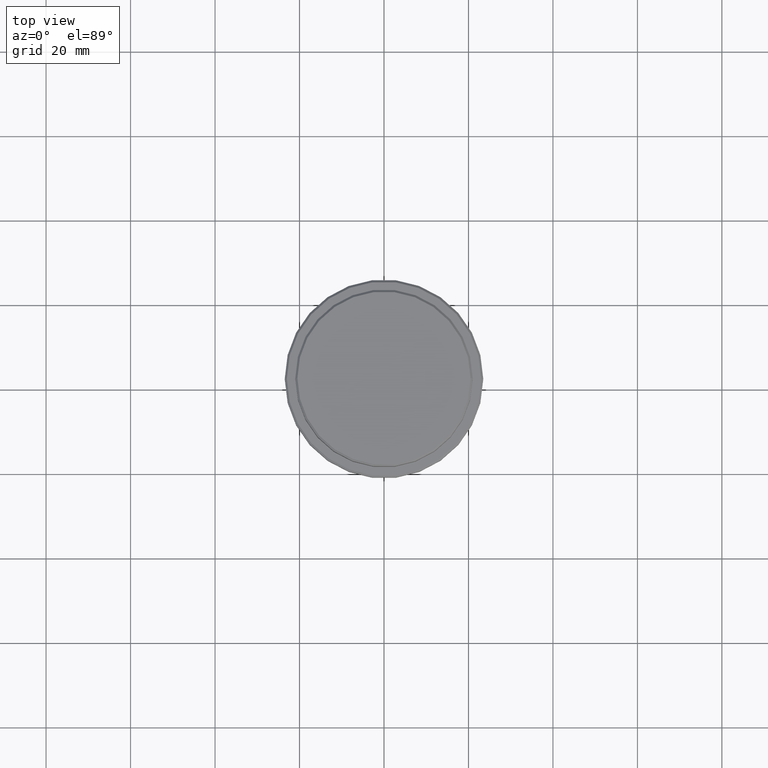
[diagram: clean part render]
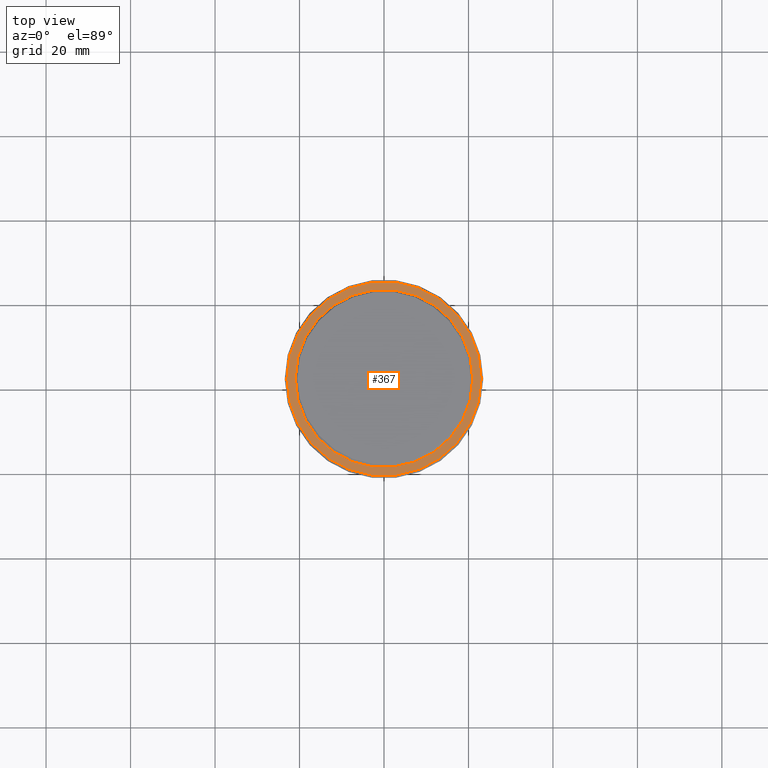
[diagram: same view with one face highlighted and labeled with its STEP entity id]
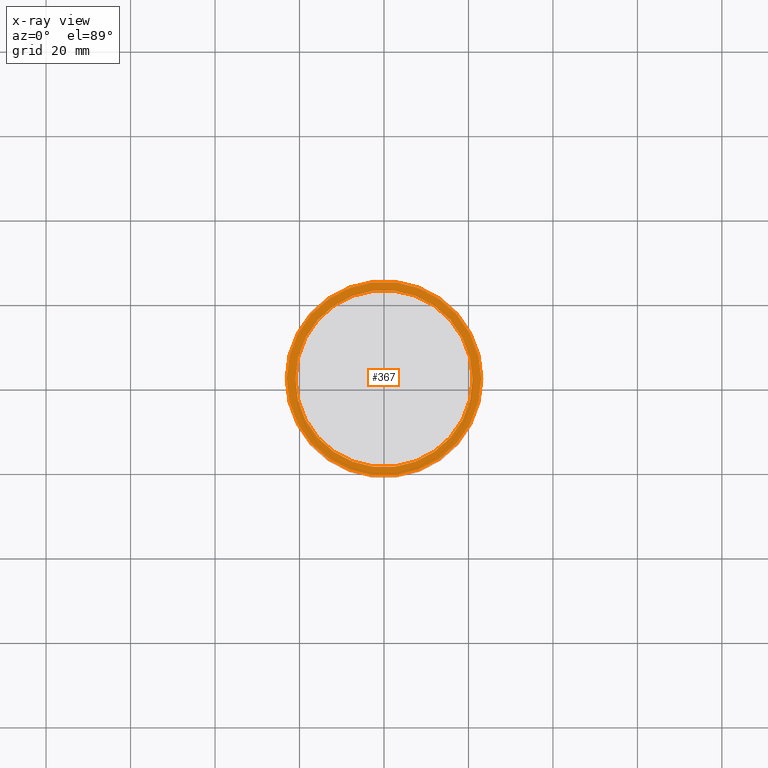
[diagram: x-ray of the same camera — body ghosted, the highlighted face saturated]
A machine part, top view. The second image highlights one B-rep face of the part: STEP entity #367.
The next image is the same camera in x-ray: the body ghosted, the highlighted face saturated — about 0% of this face is hidden behind the body in this view.
In plain terms, the highlighted planar face has unit normal (0, -0, 1).
Its self-contained STEP definition (entity closure, byte-faithful):
#1 = VERTEX_POINT ( 'NONE', #554 ) ;
#30 = VERTEX_POINT ( 'NONE', #1019 ) ;
#32 = DIRECTION ( 'NONE',  ( 0.000000000000000000, -0.000000000000000000, 1.000000000000000000 ) ) ;
#70 = AXIS2_PLACEMENT_3D ( 'NONE', #819, #810, #917 ) ;
#141 = FACE_BOUND ( 'NONE', #980, .T. ) ;
#187 = CIRCLE ( 'NONE', #638, 20.99999999999999289 ) ;
#197 = EDGE_CURVE ( 'NONE', #1, #30, #959, .T. ) ;
#215 = CARTESIAN_POINT ( 'NONE',  ( 0.000000000000000000, 0.000000000000000000, -9.000000000000000000 ) ) ;
#303 = DIRECTION ( 'NONE',  ( -0.000000000000000000, -0.000000000000000000, 1.000000000000000000 ) ) ;
#367 = ADVANCED_FACE ( 'NONE', ( #772, #141 ), #760, .T. ) ;
#414 = EDGE_CURVE ( 'NONE', #911, #565, #569, .T. ) ;
#484 = CARTESIAN_POINT ( 'NONE',  ( 20.99999999999999289, 0.000000000000000000, -9.000000000000000000 ) ) ;
#486 = ORIENTED_EDGE ( 'NONE', *, *, #592, .T. ) ;
#515 = AXIS2_PLACEMENT_3D ( 'NONE', #1284, #303, #1258 ) ;
#554 = CARTESIAN_POINT ( 'NONE',  ( -22.99999999999999645, 0.000000000000000000, -9.000000000000000000 ) ) ;
#565 = VERTEX_POINT ( 'NONE', #596 ) ;
#569 = CIRCLE ( 'NONE', #70, 20.99999999999999289 ) ;
#573 = CARTESIAN_POINT ( 'NONE',  ( 0.000000000000000000, 20.49999999999999645, -9.000000000000000000 ) ) ;
#592 = EDGE_CURVE ( 'NONE', #565, #911, #187, .T. ) ;
#596 = CARTESIAN_POINT ( 'NONE',  ( -20.99999999999999289, 2.571758278209440872E-15, -9.000000000000000000 ) ) ;
#638 = AXIS2_PLACEMENT_3D ( 'NONE', #215, #1199, #645 ) ;
#645 = DIRECTION ( 'NONE',  ( 1.000000000000000000, 0.000000000000000000, 0.000000000000000000 ) ) ;
#648 = DIRECTION ( 'NONE',  ( 1.000000000000000000, 0.000000000000000000, 0.000000000000000000 ) ) ;
#760 = PLANE ( 'NONE',  #1062 ) ;
#772 = FACE_OUTER_BOUND ( 'NONE', #1251, .T. ) ;
#810 = DIRECTION ( 'NONE',  ( 0.000000000000000000, 0.000000000000000000, -1.000000000000000000 ) ) ;
#815 = ORIENTED_EDGE ( 'NONE', *, *, #197, .T. ) ;
#819 = CARTESIAN_POINT ( 'NONE',  ( 0.000000000000000000, 0.000000000000000000, -9.000000000000000000 ) ) ;
#855 = ORIENTED_EDGE ( 'NONE', *, *, #414, .T. ) ;
#867 = CARTESIAN_POINT ( 'NONE',  ( 0.000000000000000000, 0.000000000000000000, -9.000000000000000000 ) ) ;
#911 = VERTEX_POINT ( 'NONE', #484 ) ;
#917 = DIRECTION ( 'NONE',  ( 1.000000000000000000, 0.000000000000000000, 0.000000000000000000 ) ) ;
#956 = DIRECTION ( 'NONE',  ( -0.000000000000000000, -0.000000000000000000, 1.000000000000000000 ) ) ;
#959 = CIRCLE ( 'NONE', #515, 22.99999999999999645 ) ;
#980 = EDGE_LOOP ( 'NONE', ( #855, #486 ) ) ;
#1019 = CARTESIAN_POINT ( 'NONE',  ( 22.99999999999999645, 2.847303808017596139E-15, -9.000000000000000000 ) ) ;
#1062 = AXIS2_PLACEMENT_3D ( 'NONE', #573, #32, #1231 ) ;
#1145 = EDGE_CURVE ( 'NONE', #30, #1, #1202, .T. ) ;
#1199 = DIRECTION ( 'NONE',  ( 0.000000000000000000, 0.000000000000000000, -1.000000000000000000 ) ) ;
#1202 = CIRCLE ( 'NONE', #1325, 22.99999999999999645 ) ;
#1231 = DIRECTION ( 'NONE',  ( 1.000000000000000000, 0.000000000000000000, 0.000000000000000000 ) ) ;
#1245 = ORIENTED_EDGE ( 'NONE', *, *, #1145, .T. ) ;
#1251 = EDGE_LOOP ( 'NONE', ( #815, #1245 ) ) ;
#1258 = DIRECTION ( 'NONE',  ( 1.000000000000000000, 0.000000000000000000, 0.000000000000000000 ) ) ;
#1284 = CARTESIAN_POINT ( 'NONE',  ( 0.000000000000000000, 0.000000000000000000, -9.000000000000000000 ) ) ;
#1325 = AXIS2_PLACEMENT_3D ( 'NONE', #867, #956, #648 ) ;